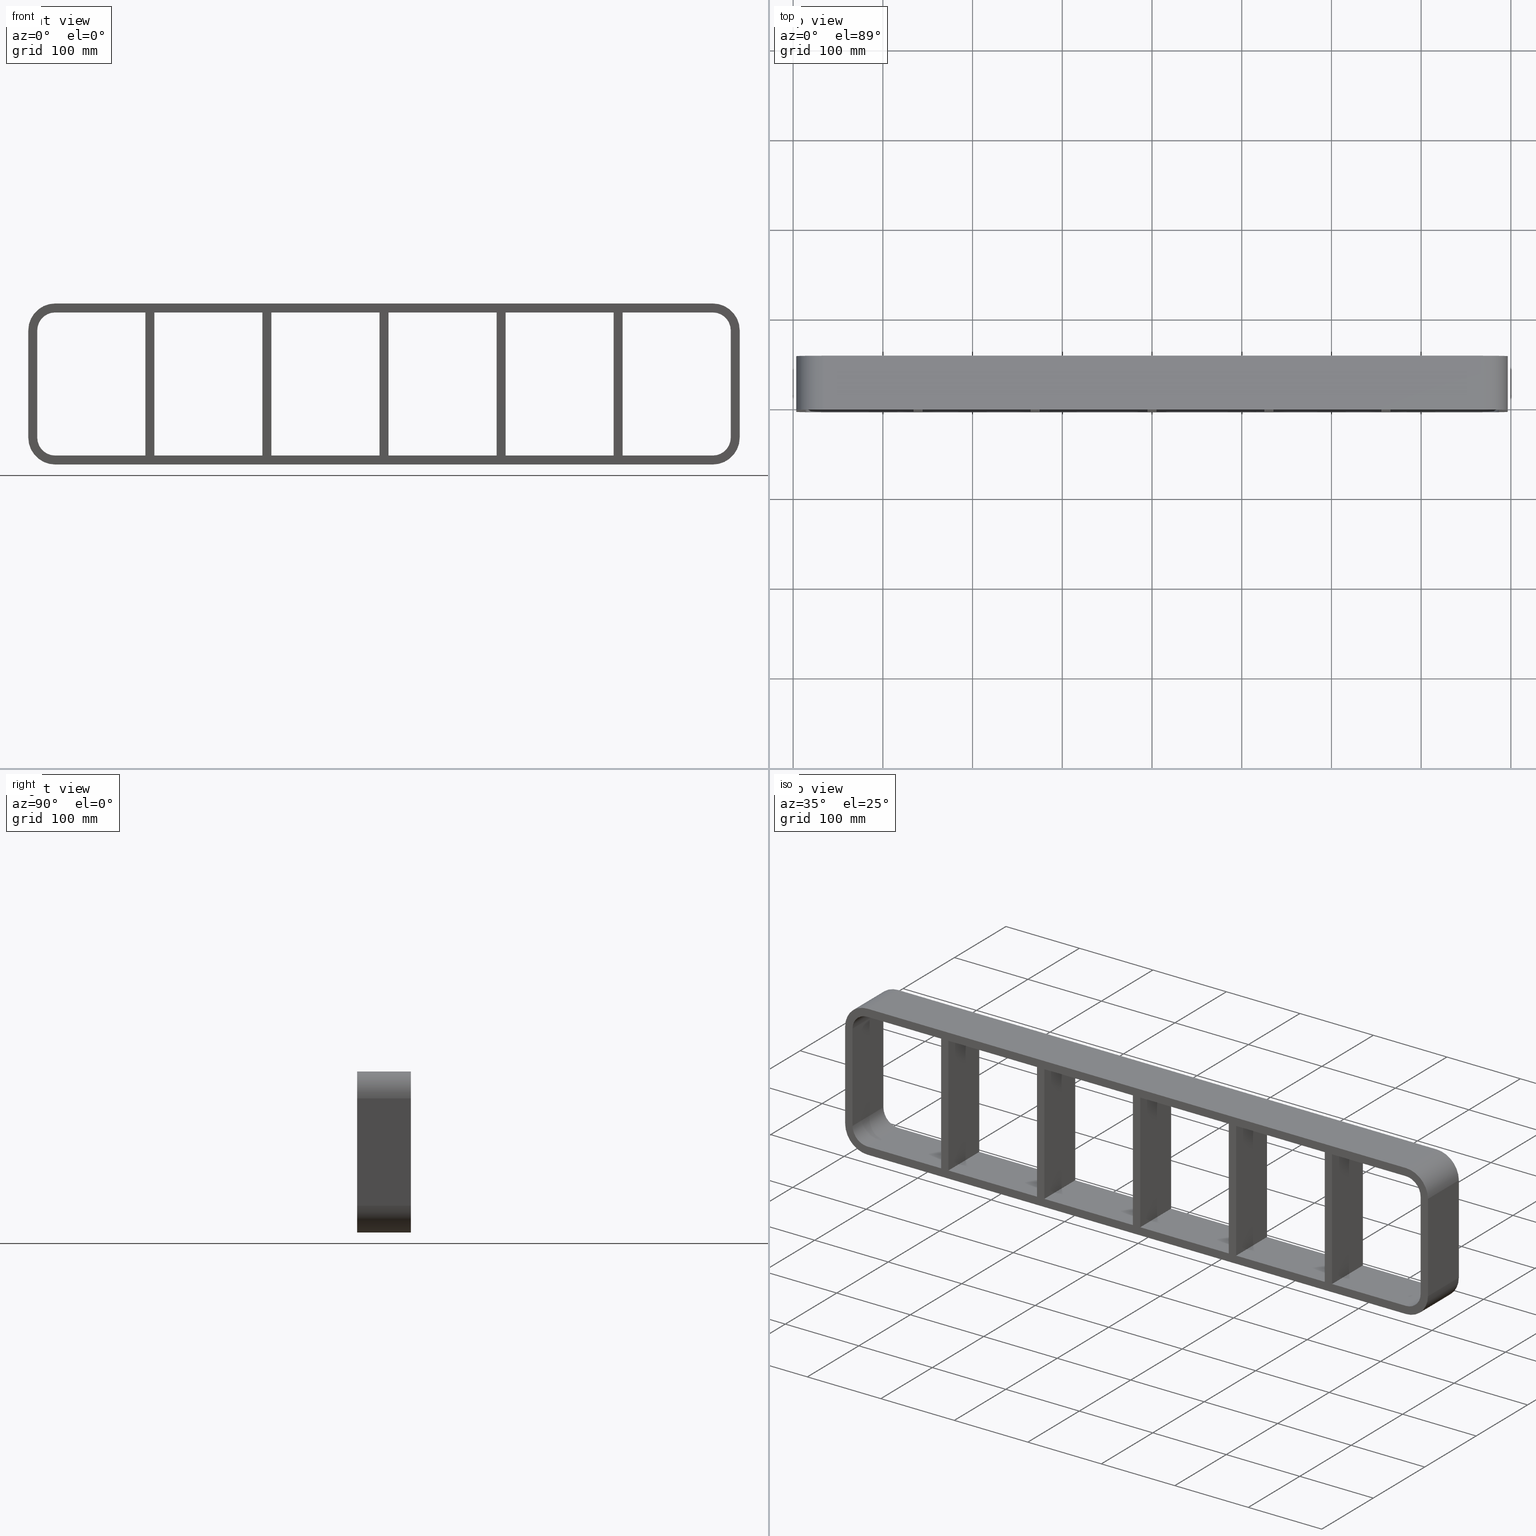
[diagram: canonical four-view strip — front | top / right | iso, engineering-drawing reading convention]
A machine part, canonical four-view strip (front | top / right | iso — engineering-drawing reading convention). The complete STEP part file that produces these views, byte-faithful:
ISO-10303-21;
HEADER;
/****************************************************************
 * Generated by software with PDElib inside                    *
 * PDElib Version v51a, created Wed 11/30/2011                  *
 * ITI Transcendata (http://www.transcendata.com/)              *
 ****************************************************************/
FILE_DESCRIPTION((''),'2;1');
FILE_NAME('N:\\Projects\\Ongoing_Projects\\12403 Transit Designer\\Product-data\\Product Data\\Transit designer Cad Generator\\CreatedFiles\\STEP\\SRCR20-4X6.stp','2014-10-31T09:52:24',(''),(''),'Autodesk Inventor 2013','Autodesk Inventor 2013','');
FILE_SCHEMA(('AUTOMOTIVE_DESIGN { 1 0 10303 214 1 1 1 1 }'));
ENDSEC;
DATA;
#5=APPLICATION_CONTEXT('automotive design');
#6=APPLICATION_PROTOCOL_DEFINITION('International Standard','automotive_design',2001,#5);
#7=PRODUCT_CONTEXT('',#5,'mechanical');
#8=PRODUCT('GH-ISO','GH-ISO',$,(#7));
#9=PRODUCT_RELATED_PRODUCT_CATEGORY('part',$,(#8));
#10=PRODUCT_DEFINITION_FORMATION('',$,#8);
#11=PRODUCT_DEFINITION_CONTEXT('part definition',#5,'design');
#12=PRODUCT_DEFINITION('',$,#10,#11);
#18=(NAMED_UNIT(*)PLANE_ANGLE_UNIT()SI_UNIT($,.RADIAN.));
#19=DIMENSIONAL_EXPONENTS(0.0,0.0,0.0,0.0,0.0,0.0,0.0);
#20=PLANE_ANGLE_MEASURE_WITH_UNIT(PLANE_ANGLE_MEASURE(0.0174532925),#18);
#24=(CONVERSION_BASED_UNIT('DEGREE',#20)NAMED_UNIT(#19)PLANE_ANGLE_UNIT());
#28=(NAMED_UNIT(*)SI_UNIT($,.STERADIAN.)SOLID_ANGLE_UNIT());
#32=(LENGTH_UNIT()NAMED_UNIT(*)SI_UNIT(.MILLI.,.METRE.));
#34=UNCERTAINTY_MEASURE_WITH_UNIT(LENGTH_MEASURE(0.01),#32,'DISTANCE_ACCURACY_VALUE','');
#36=(GEOMETRIC_REPRESENTATION_CONTEXT(3)GLOBAL_UNCERTAINTY_ASSIGNED_CONTEXT((#34))GLOBAL_UNIT_ASSIGNED_CONTEXT((#24,#28,#32))REPRESENTATION_CONTEXT('None','None'));
#37=AXIS2_PLACEMENT_3D('',#38,#39,#40);
#38=CARTESIAN_POINT('',(0.0,0.0,0.0));
#39=DIRECTION('',(0.0,0.0,1.0));
#40=DIRECTION('',(1.0,0.0,0.0));
#41=SHAPE_REPRESENTATION('',(#37),#36);
#42=PRODUCT_DEFINITION_SHAPE('','',#12);
#43=SHAPE_DEFINITION_REPRESENTATION(#42,#41);
#49=(NAMED_UNIT(*)PLANE_ANGLE_UNIT()SI_UNIT($,.RADIAN.));
#50=DIMENSIONAL_EXPONENTS(0.0,0.0,0.0,0.0,0.0,0.0,0.0);
#51=PLANE_ANGLE_MEASURE_WITH_UNIT(PLANE_ANGLE_MEASURE(0.0174532925),#49);
#55=(CONVERSION_BASED_UNIT('DEGREE',#51)NAMED_UNIT(#50)PLANE_ANGLE_UNIT());
#59=(NAMED_UNIT(*)SI_UNIT($,.STERADIAN.)SOLID_ANGLE_UNIT());
#63=(LENGTH_UNIT()NAMED_UNIT(*)SI_UNIT(.MILLI.,.METRE.));
#65=UNCERTAINTY_MEASURE_WITH_UNIT(LENGTH_MEASURE(0.000001),#63,'DISTANCE_ACCURACY_VALUE','');
#67=(GEOMETRIC_REPRESENTATION_CONTEXT(3)GLOBAL_UNCERTAINTY_ASSIGNED_CONTEXT((#65))GLOBAL_UNIT_ASSIGNED_CONTEXT((#55,#59,#63))REPRESENTATION_CONTEXT('','3D'));
#68=CARTESIAN_POINT('',(255.99999999999869,-3.0,-79.750000000000014));
#69=DIRECTION('',(-1.0,0.0,0.0));
#70=DIRECTION('',(0.0,0.0,1.0));
#71=AXIS2_PLACEMENT_3D('',#68,#69,#70);
#72=PLANE('',#71);
#73=CARTESIAN_POINT('',(255.99999999999869,-3.0,-79.750000000000014));
#74=VERTEX_POINT('',#73);
#75=CARTESIAN_POINT('',(255.99999999999866,-3.0,79.750000000000014));
#76=VERTEX_POINT('',#75);
#77=CARTESIAN_POINT('',(255.99999999999869,-3.0,-79.750000000000014));
#78=DIRECTION('',(0.0,0.0,1.0));
#79=VECTOR('',#78,159.50000000000003);
#80=LINE('',#77,#79);
#81=EDGE_CURVE('',#74,#76,#80,.T.);
#82=ORIENTED_EDGE('',*,*,#81,.T.);
#83=CARTESIAN_POINT('',(255.99999999999866,57.0,79.750000000000014));
#84=VERTEX_POINT('',#83);
#85=CARTESIAN_POINT('',(255.99999999999866,57.000000000000007,79.750000000000014));
#86=DIRECTION('',(0.0,-1.0,0.0));
#87=VECTOR('',#86,60.000000000000007);
#88=LINE('',#85,#87);
#89=EDGE_CURVE('',#84,#76,#88,.T.);
#90=ORIENTED_EDGE('',*,*,#89,.F.);
#91=CARTESIAN_POINT('',(255.99999999999869,57.0,-79.750000000000014));
#92=VERTEX_POINT('',#91);
#93=CARTESIAN_POINT('',(255.99999999999869,57.0,-79.750000000000014));
#94=DIRECTION('',(0.0,0.0,1.0));
#95=VECTOR('',#94,159.50000000000003);
#96=LINE('',#93,#95);
#97=EDGE_CURVE('',#92,#84,#96,.T.);
#98=ORIENTED_EDGE('',*,*,#97,.F.);
#99=CARTESIAN_POINT('',(255.99999999999866,-3.0,-79.750000000000014));
#100=DIRECTION('',(0.0,1.0,0.0));
#101=VECTOR('',#100,60.000000000000007);
#102=LINE('',#99,#101);
#103=EDGE_CURVE('',#74,#92,#102,.T.);
#104=ORIENTED_EDGE('',*,*,#103,.F.);
#105=EDGE_LOOP('',(#82,#90,#98,#104));
#106=FACE_OUTER_BOUND('',#105,.T.);
#107=ADVANCED_FACE('',(#106),#72,.T.);
#108=CARTESIAN_POINT('',(265.99999999999642,-3.0,79.750000000000014));
#109=DIRECTION('',(1.0,0.0,0.0));
#110=DIRECTION('',(0.0,0.0,-1.0));
#111=AXIS2_PLACEMENT_3D('',#108,#109,#110);
#112=PLANE('',#111);
#113=CARTESIAN_POINT('',(265.99999999999642,-3.0,79.750000000000014));
#114=VERTEX_POINT('',#113);
#115=CARTESIAN_POINT('',(265.99999999999642,-3.0,-79.749999999984283));
#116=VERTEX_POINT('',#115);
#117=CARTESIAN_POINT('',(265.99999999999642,-3.0,79.750000000000014));
#118=DIRECTION('',(0.0,0.0,-1.0));
#119=VECTOR('',#118,159.49999999998428);
#120=LINE('',#117,#119);
#121=EDGE_CURVE('',#114,#116,#120,.T.);
#122=ORIENTED_EDGE('',*,*,#121,.T.);
#123=CARTESIAN_POINT('',(265.99999999999642,57.0,-79.749999999984283));
#124=VERTEX_POINT('',#123);
#125=CARTESIAN_POINT('',(265.99999999999636,57.000000000000007,-79.750000000000014));
#126=DIRECTION('',(0.0,-1.0,0.0));
#127=VECTOR('',#126,60.000000000000007);
#128=LINE('',#125,#127);
#129=EDGE_CURVE('',#124,#116,#128,.T.);
#130=ORIENTED_EDGE('',*,*,#129,.F.);
#131=CARTESIAN_POINT('',(265.99999999999642,57.0,79.750000000000014));
#132=VERTEX_POINT('',#131);
#133=CARTESIAN_POINT('',(265.99999999999642,57.0,79.750000000000014));
#134=DIRECTION('',(0.0,0.0,-1.0));
#135=VECTOR('',#134,159.49999999998428);
#136=LINE('',#133,#135);
#137=EDGE_CURVE('',#132,#124,#136,.T.);
#138=ORIENTED_EDGE('',*,*,#137,.F.);
#139=CARTESIAN_POINT('',(265.99999999999636,-3.0,79.750000000000014));
#140=DIRECTION('',(0.0,1.0,0.0));
#141=VECTOR('',#140,60.000000000000007);
#142=LINE('',#139,#141);
#143=EDGE_CURVE('',#114,#132,#142,.T.);
#144=ORIENTED_EDGE('',*,*,#143,.F.);
#145=EDGE_LOOP('',(#122,#130,#138,#144));
#146=FACE_OUTER_BOUND('',#145,.T.);
#147=ADVANCED_FACE('',(#146),#112,.T.);
#148=CARTESIAN_POINT('',(125.49999999999869,-3.0,-79.750000000000014));
#149=DIRECTION('',(-1.0,0.0,0.0));
#150=DIRECTION('',(0.0,0.0,1.0));
#151=AXIS2_PLACEMENT_3D('',#148,#149,#150);
#152=PLANE('',#151);
#153=CARTESIAN_POINT('',(125.49999999999869,-3.0,-79.750000000000014));
#154=VERTEX_POINT('',#153);
#155=CARTESIAN_POINT('',(125.49999999999866,-3.0,79.750000000000014));
#156=VERTEX_POINT('',#155);
#157=CARTESIAN_POINT('',(125.49999999999869,-3.0,-79.750000000000014));
#158=DIRECTION('',(0.0,0.0,1.0));
#159=VECTOR('',#158,159.50000000000003);
#160=LINE('',#157,#159);
#161=EDGE_CURVE('',#154,#156,#160,.T.);
#162=ORIENTED_EDGE('',*,*,#161,.T.);
#163=CARTESIAN_POINT('',(125.49999999999866,57.0,79.750000000000014));
#164=VERTEX_POINT('',#163);
#165=CARTESIAN_POINT('',(125.49999999999868,57.000000000000007,79.750000000000014));
#166=DIRECTION('',(0.0,-1.0,0.0));
#167=VECTOR('',#166,60.000000000000007);
#168=LINE('',#165,#167);
#169=EDGE_CURVE('',#164,#156,#168,.T.);
#170=ORIENTED_EDGE('',*,*,#169,.F.);
#171=CARTESIAN_POINT('',(125.49999999999869,57.0,-79.750000000000014));
#172=VERTEX_POINT('',#171);
#173=CARTESIAN_POINT('',(125.49999999999869,57.0,-79.750000000000014));
#174=DIRECTION('',(0.0,0.0,1.0));
#175=VECTOR('',#174,159.50000000000003);
#176=LINE('',#173,#175);
#177=EDGE_CURVE('',#172,#164,#176,.T.);
#178=ORIENTED_EDGE('',*,*,#177,.F.);
#179=CARTESIAN_POINT('',(125.49999999999869,-3.0,-79.750000000000014));
#180=DIRECTION('',(0.0,1.0,0.0));
#181=VECTOR('',#180,60.000000000000007);
#182=LINE('',#179,#181);
#183=EDGE_CURVE('',#154,#172,#182,.T.);
#184=ORIENTED_EDGE('',*,*,#183,.F.);
#185=EDGE_LOOP('',(#162,#170,#178,#184));
#186=FACE_OUTER_BOUND('',#185,.T.);
#187=ADVANCED_FACE('',(#186),#152,.T.);
#188=CARTESIAN_POINT('',(135.49999999999642,-3.0,79.750000000000014));
#189=DIRECTION('',(1.0,0.0,0.0));
#190=DIRECTION('',(0.0,0.0,-1.0));
#191=AXIS2_PLACEMENT_3D('',#188,#189,#190);
#192=PLANE('',#191);
#193=CARTESIAN_POINT('',(135.49999999999642,-3.0,79.750000000000014));
#194=VERTEX_POINT('',#193);
#195=CARTESIAN_POINT('',(135.49999999999642,-3.0,-79.749999999984283));
#196=VERTEX_POINT('',#195);
#197=CARTESIAN_POINT('',(135.49999999999642,-3.0,79.750000000000014));
#198=DIRECTION('',(0.0,0.0,-1.0));
#199=VECTOR('',#198,159.49999999998428);
#200=LINE('',#197,#199);
#201=EDGE_CURVE('',#194,#196,#200,.T.);
#202=ORIENTED_EDGE('',*,*,#201,.T.);
#203=CARTESIAN_POINT('',(135.49999999999642,57.0,-79.749999999984283));
#204=VERTEX_POINT('',#203);
#205=CARTESIAN_POINT('',(135.49999999999642,57.000000000000007,-79.750000000000014));
#206=DIRECTION('',(0.0,-1.0,0.0));
#207=VECTOR('',#206,60.000000000000007);
#208=LINE('',#205,#207);
#209=EDGE_CURVE('',#204,#196,#208,.T.);
#210=ORIENTED_EDGE('',*,*,#209,.F.);
#211=CARTESIAN_POINT('',(135.49999999999642,57.0,79.750000000000014));
#212=VERTEX_POINT('',#211);
#213=CARTESIAN_POINT('',(135.49999999999642,57.0,79.750000000000014));
#214=DIRECTION('',(0.0,0.0,-1.0));
#215=VECTOR('',#214,159.49999999998428);
#216=LINE('',#213,#215);
#217=EDGE_CURVE('',#212,#204,#216,.T.);
#218=ORIENTED_EDGE('',*,*,#217,.F.);
#219=CARTESIAN_POINT('',(135.49999999999642,-3.0,79.750000000000014));
#220=DIRECTION('',(0.0,1.0,0.0));
#221=VECTOR('',#220,60.000000000000007);
#222=LINE('',#219,#221);
#223=EDGE_CURVE('',#194,#212,#222,.T.);
#224=ORIENTED_EDGE('',*,*,#223,.F.);
#225=EDGE_LOOP('',(#202,#210,#218,#224));
#226=FACE_OUTER_BOUND('',#225,.T.);
#227=ADVANCED_FACE('',(#226),#192,.T.);
#228=CARTESIAN_POINT('',(-5.00000000000135,-3.0,-79.750000000000014));
#229=DIRECTION('',(-1.0,0.0,0.0));
#230=DIRECTION('',(0.0,0.0,1.0));
#231=AXIS2_PLACEMENT_3D('',#228,#229,#230);
#232=PLANE('',#231);
#233=CARTESIAN_POINT('',(-5.00000000000135,-3.0,-79.750000000000014));
#234=VERTEX_POINT('',#233);
#235=CARTESIAN_POINT('',(-5.000000000001386,-3.0,79.750000000000014));
#236=VERTEX_POINT('',#235);
#237=CARTESIAN_POINT('',(-5.00000000000135,-3.0,-79.750000000000014));
#238=DIRECTION('',(0.0,0.0,1.0));
#239=VECTOR('',#238,159.50000000000003);
#240=LINE('',#237,#239);
#241=EDGE_CURVE('',#234,#236,#240,.T.);
#242=ORIENTED_EDGE('',*,*,#241,.T.);
#243=CARTESIAN_POINT('',(-5.000000000001386,57.0,79.750000000000014));
#244=VERTEX_POINT('',#243);
#245=CARTESIAN_POINT('',(-5.000000000001403,57.000000000000007,79.750000000000014));
#246=DIRECTION('',(0.0,-1.0,0.0));
#247=VECTOR('',#246,60.000000000000007);
#248=LINE('',#245,#247);
#249=EDGE_CURVE('',#244,#236,#248,.T.);
#250=ORIENTED_EDGE('',*,*,#249,.F.);
#251=CARTESIAN_POINT('',(-5.00000000000135,57.0,-79.750000000000014));
#252=VERTEX_POINT('',#251);
#253=CARTESIAN_POINT('',(-5.00000000000135,57.0,-79.750000000000014));
#254=DIRECTION('',(0.0,0.0,1.0));
#255=VECTOR('',#254,159.50000000000003);
#256=LINE('',#253,#255);
#257=EDGE_CURVE('',#252,#244,#256,.T.);
#258=ORIENTED_EDGE('',*,*,#257,.F.);
#259=CARTESIAN_POINT('',(-5.00000000000135,-3.0,-79.750000000000014));
#260=DIRECTION('',(0.0,1.0,0.0));
#261=VECTOR('',#260,60.000000000000007);
#262=LINE('',#259,#261);
#263=EDGE_CURVE('',#234,#252,#262,.T.);
#264=ORIENTED_EDGE('',*,*,#263,.F.);
#265=EDGE_LOOP('',(#242,#250,#258,#264));
#266=FACE_OUTER_BOUND('',#265,.T.);
#267=ADVANCED_FACE('',(#266),#232,.T.);
#268=CARTESIAN_POINT('',(4.999999999996376,-3.0,79.750000000000014));
#269=DIRECTION('',(1.0,0.0,0.0));
#270=DIRECTION('',(0.0,0.0,-1.0));
#271=AXIS2_PLACEMENT_3D('',#268,#269,#270);
#272=PLANE('',#271);
#273=CARTESIAN_POINT('',(4.999999999996376,-3.0,79.750000000000014));
#274=VERTEX_POINT('',#273);
#275=CARTESIAN_POINT('',(4.999999999996376,-3.0,-79.749999999984283));
#276=VERTEX_POINT('',#275);
#277=CARTESIAN_POINT('',(4.999999999996376,-3.0,79.750000000000014));
#278=DIRECTION('',(0.0,0.0,-1.0));
#279=VECTOR('',#278,159.49999999998428);
#280=LINE('',#277,#279);
#281=EDGE_CURVE('',#274,#276,#280,.T.);
#282=ORIENTED_EDGE('',*,*,#281,.T.);
#283=CARTESIAN_POINT('',(4.999999999996376,57.0,-79.749999999984283));
#284=VERTEX_POINT('',#283);
#285=CARTESIAN_POINT('',(4.999999999996376,57.000000000000007,-79.750000000000014));
#286=DIRECTION('',(0.0,-1.0,0.0));
#287=VECTOR('',#286,60.000000000000007);
#288=LINE('',#285,#287);
#289=EDGE_CURVE('',#284,#276,#288,.T.);
#290=ORIENTED_EDGE('',*,*,#289,.F.);
#291=CARTESIAN_POINT('',(4.999999999996376,57.0,79.750000000000014));
#292=VERTEX_POINT('',#291);
#293=CARTESIAN_POINT('',(4.999999999996376,57.0,79.750000000000014));
#294=DIRECTION('',(0.0,0.0,-1.0));
#295=VECTOR('',#294,159.49999999998428);
#296=LINE('',#293,#295);
#297=EDGE_CURVE('',#292,#284,#296,.T.);
#298=ORIENTED_EDGE('',*,*,#297,.F.);
#299=CARTESIAN_POINT('',(4.999999999996376,-3.0,79.750000000000014));
#300=DIRECTION('',(0.0,1.0,0.0));
#301=VECTOR('',#300,60.000000000000007);
#302=LINE('',#299,#301);
#303=EDGE_CURVE('',#274,#292,#302,.T.);
#304=ORIENTED_EDGE('',*,*,#303,.F.);
#305=EDGE_LOOP('',(#282,#290,#298,#304));
#306=FACE_OUTER_BOUND('',#305,.T.);
#307=ADVANCED_FACE('',(#306),#272,.T.);
#308=CARTESIAN_POINT('',(-135.50000000000136,-3.0,-79.750000000000014));
#309=DIRECTION('',(-1.0,0.0,0.0));
#310=DIRECTION('',(0.0,0.0,1.0));
#311=AXIS2_PLACEMENT_3D('',#308,#309,#310);
#312=PLANE('',#311);
#313=CARTESIAN_POINT('',(-135.50000000000136,-3.0,-79.750000000000014));
#314=VERTEX_POINT('',#313);
#315=CARTESIAN_POINT('',(-135.50000000000139,-3.0,79.750000000000014));
#316=VERTEX_POINT('',#315);
#317=CARTESIAN_POINT('',(-135.50000000000136,-3.0,-79.750000000000014));
#318=DIRECTION('',(0.0,0.0,1.0));
#319=VECTOR('',#318,159.50000000000003);
#320=LINE('',#317,#319);
#321=EDGE_CURVE('',#314,#316,#320,.T.);
#322=ORIENTED_EDGE('',*,*,#321,.T.);
#323=CARTESIAN_POINT('',(-135.50000000000139,57.0,79.750000000000014));
#324=VERTEX_POINT('',#323);
#325=CARTESIAN_POINT('',(-135.50000000000142,57.000000000000007,79.750000000000014));
#326=DIRECTION('',(0.0,-1.0,0.0));
#327=VECTOR('',#326,60.000000000000007);
#328=LINE('',#325,#327);
#329=EDGE_CURVE('',#324,#316,#328,.T.);
#330=ORIENTED_EDGE('',*,*,#329,.F.);
#331=CARTESIAN_POINT('',(-135.50000000000136,57.0,-79.750000000000014));
#332=VERTEX_POINT('',#331);
#333=CARTESIAN_POINT('',(-135.50000000000136,57.0,-79.750000000000014));
#334=DIRECTION('',(0.0,0.0,1.0));
#335=VECTOR('',#334,159.50000000000003);
#336=LINE('',#333,#335);
#337=EDGE_CURVE('',#332,#324,#336,.T.);
#338=ORIENTED_EDGE('',*,*,#337,.F.);
#339=CARTESIAN_POINT('',(-135.50000000000136,-3.0,-79.750000000000014));
#340=DIRECTION('',(0.0,1.0,0.0));
#341=VECTOR('',#340,60.000000000000007);
#342=LINE('',#339,#341);
#343=EDGE_CURVE('',#314,#332,#342,.T.);
#344=ORIENTED_EDGE('',*,*,#343,.F.);
#345=EDGE_LOOP('',(#322,#330,#338,#344));
#346=FACE_OUTER_BOUND('',#345,.T.);
#347=ADVANCED_FACE('',(#346),#312,.T.);
#348=CARTESIAN_POINT('',(-125.50000000000364,-3.0,79.750000000000014));
#349=DIRECTION('',(1.0,0.0,0.0));
#350=DIRECTION('',(0.0,0.0,-1.0));
#351=AXIS2_PLACEMENT_3D('',#348,#349,#350);
#352=PLANE('',#351);
#353=CARTESIAN_POINT('',(-125.50000000000364,-3.0,79.750000000000014));
#354=VERTEX_POINT('',#353);
#355=CARTESIAN_POINT('',(-125.50000000000364,-3.0,-79.749999999984283));
#356=VERTEX_POINT('',#355);
#357=CARTESIAN_POINT('',(-125.50000000000364,-3.0,79.750000000000014));
#358=DIRECTION('',(0.0,0.0,-1.0));
#359=VECTOR('',#358,159.49999999998428);
#360=LINE('',#357,#359);
#361=EDGE_CURVE('',#354,#356,#360,.T.);
#362=ORIENTED_EDGE('',*,*,#361,.T.);
#363=CARTESIAN_POINT('',(-125.50000000000364,57.0,-79.749999999984283));
#364=VERTEX_POINT('',#363);
#365=CARTESIAN_POINT('',(-125.50000000000365,57.000000000000007,-79.750000000000014));
#366=DIRECTION('',(0.0,-1.0,0.0));
#367=VECTOR('',#366,60.000000000000007);
#368=LINE('',#365,#367);
#369=EDGE_CURVE('',#364,#356,#368,.T.);
#370=ORIENTED_EDGE('',*,*,#369,.F.);
#371=CARTESIAN_POINT('',(-125.50000000000364,57.0,79.750000000000014));
#372=VERTEX_POINT('',#371);
#373=CARTESIAN_POINT('',(-125.50000000000364,57.0,79.750000000000014));
#374=DIRECTION('',(0.0,0.0,-1.0));
#375=VECTOR('',#374,159.49999999998428);
#376=LINE('',#373,#375);
#377=EDGE_CURVE('',#372,#364,#376,.T.);
#378=ORIENTED_EDGE('',*,*,#377,.F.);
#379=CARTESIAN_POINT('',(-125.50000000000365,-3.0,79.750000000000014));
#380=DIRECTION('',(0.0,1.0,0.0));
#381=VECTOR('',#380,60.000000000000007);
#382=LINE('',#379,#381);
#383=EDGE_CURVE('',#354,#372,#382,.T.);
#384=ORIENTED_EDGE('',*,*,#383,.F.);
#385=EDGE_LOOP('',(#362,#370,#378,#384));
#386=FACE_OUTER_BOUND('',#385,.T.);
#387=ADVANCED_FACE('',(#386),#352,.T.);
#388=CARTESIAN_POINT('',(386.50000000000006,0.0,-79.750000000000014));
#389=DIRECTION('',(0.0,0.0,-1.0));
#390=DIRECTION('',(-1.0,0.0,0.0));
#391=AXIS2_PLACEMENT_3D('',#388,#389,#390);
#392=PLANE('',#391);
#393=ORIENTED_EDGE('',*,*,#343,.T.);
#394=CARTESIAN_POINT('',(-256.00000000000364,57.0,-79.749999999984283));
#395=VERTEX_POINT('',#394);
#396=CARTESIAN_POINT('',(-256.00000000000364,57.0,-79.750000000000014));
#397=DIRECTION('',(1.0,0.0,0.0));
#398=VECTOR('',#397,120.50000000000225);
#399=LINE('',#396,#398);
#400=EDGE_CURVE('',#395,#332,#399,.T.);
#401=ORIENTED_EDGE('',*,*,#400,.F.);
#402=CARTESIAN_POINT('',(-256.00000000000364,-3.0,-79.749999999984283));
#403=VERTEX_POINT('',#402);
#404=CARTESIAN_POINT('',(-256.00000000000364,57.000000000000007,-79.750000000000014));
#405=DIRECTION('',(0.0,-1.0,0.0));
#406=VECTOR('',#405,60.000000000000007);
#407=LINE('',#404,#406);
#408=EDGE_CURVE('',#395,#403,#407,.T.);
#409=ORIENTED_EDGE('',*,*,#408,.T.);
#410=CARTESIAN_POINT('',(-135.50000000000139,-3.0,-79.750000000000014));
#411=DIRECTION('',(-1.0,0.0,0.0));
#412=VECTOR('',#411,120.50000000000225);
#413=LINE('',#410,#412);
#414=EDGE_CURVE('',#314,#403,#413,.T.);
#415=ORIENTED_EDGE('',*,*,#414,.F.);
#416=EDGE_LOOP('',(#393,#401,#409,#415));
#417=FACE_OUTER_BOUND('',#416,.T.);
#418=ADVANCED_FACE('',(#417),#392,.F.);
#419=CARTESIAN_POINT('',(386.50000000000006,0.0,-79.750000000000014));
#420=DIRECTION('',(0.0,0.0,-1.0));
#421=DIRECTION('',(-1.0,0.0,0.0));
#422=AXIS2_PLACEMENT_3D('',#419,#420,#421);
#423=PLANE('',#422);
#424=ORIENTED_EDGE('',*,*,#263,.T.);
#425=CARTESIAN_POINT('',(-125.50000000000361,57.0,-79.750000000000014));
#426=DIRECTION('',(1.0,0.0,0.0));
#427=VECTOR('',#426,120.50000000000227);
#428=LINE('',#425,#427);
#429=EDGE_CURVE('',#364,#252,#428,.T.);
#430=ORIENTED_EDGE('',*,*,#429,.F.);
#431=ORIENTED_EDGE('',*,*,#369,.T.);
#432=CARTESIAN_POINT('',(-5.000000000001336,-3.0,-79.750000000000014));
#433=DIRECTION('',(-1.0,0.0,0.0));
#434=VECTOR('',#433,120.50000000000227);
#435=LINE('',#432,#434);
#436=EDGE_CURVE('',#234,#356,#435,.T.);
#437=ORIENTED_EDGE('',*,*,#436,.F.);
#438=EDGE_LOOP('',(#424,#430,#431,#437));
#439=FACE_OUTER_BOUND('',#438,.T.);
#440=ADVANCED_FACE('',(#439),#423,.F.);
#441=CARTESIAN_POINT('',(386.50000000000006,0.0,-79.750000000000014));
#442=DIRECTION('',(0.0,0.0,-1.0));
#443=DIRECTION('',(-1.0,0.0,0.0));
#444=AXIS2_PLACEMENT_3D('',#441,#442,#443);
#445=PLANE('',#444);
#446=ORIENTED_EDGE('',*,*,#183,.T.);
#447=CARTESIAN_POINT('',(4.99999999999639,57.0,-79.750000000000014));
#448=DIRECTION('',(1.0,0.0,0.0));
#449=VECTOR('',#448,120.5000000000023);
#450=LINE('',#447,#449);
#451=EDGE_CURVE('',#284,#172,#450,.T.);
#452=ORIENTED_EDGE('',*,*,#451,.F.);
#453=ORIENTED_EDGE('',*,*,#289,.T.);
#454=CARTESIAN_POINT('',(125.49999999999869,-3.0,-79.750000000000014));
#455=DIRECTION('',(-1.0,0.0,0.0));
#456=VECTOR('',#455,120.5000000000023);
#457=LINE('',#454,#456);
#458=EDGE_CURVE('',#154,#276,#457,.T.);
#459=ORIENTED_EDGE('',*,*,#458,.F.);
#460=EDGE_LOOP('',(#446,#452,#453,#459));
#461=FACE_OUTER_BOUND('',#460,.T.);
#462=ADVANCED_FACE('',(#461),#445,.F.);
#463=CARTESIAN_POINT('',(386.50000000000006,0.0,-79.750000000000014));
#464=DIRECTION('',(0.0,0.0,-1.0));
#465=DIRECTION('',(-1.0,0.0,0.0));
#466=AXIS2_PLACEMENT_3D('',#463,#464,#465);
#467=PLANE('',#466);
#468=ORIENTED_EDGE('',*,*,#103,.T.);
#469=CARTESIAN_POINT('',(135.49999999999642,57.0,-79.750000000000014));
#470=DIRECTION('',(1.0,0.0,0.0));
#471=VECTOR('',#470,120.50000000000227);
#472=LINE('',#469,#471);
#473=EDGE_CURVE('',#204,#92,#472,.T.);
#474=ORIENTED_EDGE('',*,*,#473,.F.);
#475=ORIENTED_EDGE('',*,*,#209,.T.);
#476=CARTESIAN_POINT('',(255.99999999999869,-3.0,-79.750000000000014));
#477=DIRECTION('',(-1.0,0.0,0.0));
#478=VECTOR('',#477,120.50000000000227);
#479=LINE('',#476,#478);
#480=EDGE_CURVE('',#74,#196,#479,.T.);
#481=ORIENTED_EDGE('',*,*,#480,.F.);
#482=EDGE_LOOP('',(#468,#474,#475,#481));
#483=FACE_OUTER_BOUND('',#482,.T.);
#484=ADVANCED_FACE('',(#483),#467,.F.);
#485=CARTESIAN_POINT('',(386.50000000000006,0.0,-79.750000000000014));
#486=DIRECTION('',(0.0,0.0,-1.0));
#487=DIRECTION('',(-1.0,0.0,0.0));
#488=AXIS2_PLACEMENT_3D('',#485,#486,#487);
#489=PLANE('',#488);
#490=ORIENTED_EDGE('',*,*,#129,.T.);
#491=CARTESIAN_POINT('',(366.50000000000006,-3.0,-79.750000000000014));
#492=VERTEX_POINT('',#491);
#493=CARTESIAN_POINT('',(366.50000000000006,-3.0,-79.750000000000014));
#494=DIRECTION('',(-1.0,0.0,0.0));
#495=VECTOR('',#494,100.50000000000364);
#496=LINE('',#493,#495);
#497=EDGE_CURVE('',#492,#116,#496,.T.);
#498=ORIENTED_EDGE('',*,*,#497,.F.);
#499=CARTESIAN_POINT('',(366.50000000000006,57.0,-79.750000000000014));
#500=VERTEX_POINT('',#499);
#501=CARTESIAN_POINT('',(366.50000000000006,57.0,-79.750000000000014));
#502=DIRECTION('',(0.0,-1.0,0.0));
#503=VECTOR('',#502,60.0);
#504=LINE('',#501,#503);
#505=EDGE_CURVE('',#500,#492,#504,.T.);
#506=ORIENTED_EDGE('',*,*,#505,.F.);
#507=CARTESIAN_POINT('',(265.99999999999642,57.0,-79.750000000000014));
#508=DIRECTION('',(1.0,0.0,0.0));
#509=VECTOR('',#508,100.50000000000364);
#510=LINE('',#507,#509);
#511=EDGE_CURVE('',#124,#500,#510,.T.);
#512=ORIENTED_EDGE('',*,*,#511,.F.);
#513=EDGE_LOOP('',(#490,#498,#506,#512));
#514=FACE_OUTER_BOUND('',#513,.T.);
#515=ADVANCED_FACE('',(#514),#489,.F.);
#516=CARTESIAN_POINT('',(-386.50000000000006,0.0,79.750000000000014));
#517=DIRECTION('',(0.0,0.0,1.0));
#518=DIRECTION('',(1.0,0.0,0.0));
#519=AXIS2_PLACEMENT_3D('',#516,#517,#518);
#520=PLANE('',#519);
#521=ORIENTED_EDGE('',*,*,#329,.T.);
#522=CARTESIAN_POINT('',(-256.00000000000364,-3.0,79.750000000000014));
#523=VERTEX_POINT('',#522);
#524=CARTESIAN_POINT('',(-256.00000000000364,-3.0,79.750000000000014));
#525=DIRECTION('',(1.0,0.0,0.0));
#526=VECTOR('',#525,120.50000000000225);
#527=LINE('',#524,#526);
#528=EDGE_CURVE('',#523,#316,#527,.T.);
#529=ORIENTED_EDGE('',*,*,#528,.F.);
#530=CARTESIAN_POINT('',(-256.00000000000364,57.0,79.750000000000014));
#531=VERTEX_POINT('',#530);
#532=CARTESIAN_POINT('',(-256.00000000000364,-3.0,79.750000000000014));
#533=DIRECTION('',(0.0,1.0,0.0));
#534=VECTOR('',#533,60.000000000000007);
#535=LINE('',#532,#534);
#536=EDGE_CURVE('',#523,#531,#535,.T.);
#537=ORIENTED_EDGE('',*,*,#536,.T.);
#538=CARTESIAN_POINT('',(-135.50000000000139,57.0,79.750000000000014));
#539=DIRECTION('',(-1.0,0.0,0.0));
#540=VECTOR('',#539,120.50000000000225);
#541=LINE('',#538,#540);
#542=EDGE_CURVE('',#324,#531,#541,.T.);
#543=ORIENTED_EDGE('',*,*,#542,.F.);
#544=EDGE_LOOP('',(#521,#529,#537,#543));
#545=FACE_OUTER_BOUND('',#544,.T.);
#546=ADVANCED_FACE('',(#545),#520,.F.);
#547=CARTESIAN_POINT('',(-386.50000000000006,0.0,79.750000000000014));
#548=DIRECTION('',(0.0,0.0,1.0));
#549=DIRECTION('',(1.0,0.0,0.0));
#550=AXIS2_PLACEMENT_3D('',#547,#548,#549);
#551=PLANE('',#550);
#552=ORIENTED_EDGE('',*,*,#249,.T.);
#553=CARTESIAN_POINT('',(-125.50000000000364,-3.0,79.750000000000014));
#554=DIRECTION('',(1.0,0.0,0.0));
#555=VECTOR('',#554,120.50000000000225);
#556=LINE('',#553,#555);
#557=EDGE_CURVE('',#354,#236,#556,.T.);
#558=ORIENTED_EDGE('',*,*,#557,.F.);
#559=ORIENTED_EDGE('',*,*,#383,.T.);
#560=CARTESIAN_POINT('',(-5.000000000001393,57.0,79.750000000000014));
#561=DIRECTION('',(-1.0,0.0,0.0));
#562=VECTOR('',#561,120.50000000000225);
#563=LINE('',#560,#562);
#564=EDGE_CURVE('',#244,#372,#563,.T.);
#565=ORIENTED_EDGE('',*,*,#564,.F.);
#566=EDGE_LOOP('',(#552,#558,#559,#565));
#567=FACE_OUTER_BOUND('',#566,.T.);
#568=ADVANCED_FACE('',(#567),#551,.F.);
#569=CARTESIAN_POINT('',(-386.50000000000006,0.0,79.750000000000014));
#570=DIRECTION('',(0.0,0.0,1.0));
#571=DIRECTION('',(1.0,0.0,0.0));
#572=AXIS2_PLACEMENT_3D('',#569,#570,#571);
#573=PLANE('',#572);
#574=ORIENTED_EDGE('',*,*,#169,.T.);
#575=CARTESIAN_POINT('',(4.99999999999639,-3.0,79.750000000000014));
#576=DIRECTION('',(1.0,0.0,0.0));
#577=VECTOR('',#576,120.50000000000227);
#578=LINE('',#575,#577);
#579=EDGE_CURVE('',#274,#156,#578,.T.);
#580=ORIENTED_EDGE('',*,*,#579,.F.);
#581=ORIENTED_EDGE('',*,*,#303,.T.);
#582=CARTESIAN_POINT('',(125.49999999999866,57.0,79.750000000000014));
#583=DIRECTION('',(-1.0,0.0,0.0));
#584=VECTOR('',#583,120.50000000000227);
#585=LINE('',#582,#584);
#586=EDGE_CURVE('',#164,#292,#585,.T.);
#587=ORIENTED_EDGE('',*,*,#586,.F.);
#588=EDGE_LOOP('',(#574,#580,#581,#587));
#589=FACE_OUTER_BOUND('',#588,.T.);
#590=ADVANCED_FACE('',(#589),#573,.F.);
#591=CARTESIAN_POINT('',(-386.50000000000006,0.0,79.750000000000014));
#592=DIRECTION('',(0.0,0.0,1.0));
#593=DIRECTION('',(1.0,0.0,0.0));
#594=AXIS2_PLACEMENT_3D('',#591,#592,#593);
#595=PLANE('',#594);
#596=ORIENTED_EDGE('',*,*,#143,.T.);
#597=CARTESIAN_POINT('',(366.50000000000006,57.0,79.750000000000014));
#598=VERTEX_POINT('',#597);
#599=CARTESIAN_POINT('',(366.50000000000011,57.0,79.750000000000014));
#600=DIRECTION('',(-1.0,0.0,0.0));
#601=VECTOR('',#600,100.50000000000375);
#602=LINE('',#599,#601);
#603=EDGE_CURVE('',#598,#132,#602,.T.);
#604=ORIENTED_EDGE('',*,*,#603,.F.);
#605=CARTESIAN_POINT('',(366.50000000000006,-3.0,79.750000000000014));
#606=VERTEX_POINT('',#605);
#607=CARTESIAN_POINT('',(366.50000000000006,-3.0,79.750000000000014));
#608=DIRECTION('',(0.0,1.0,0.0));
#609=VECTOR('',#608,60.0);
#610=LINE('',#607,#609);
#611=EDGE_CURVE('',#606,#598,#610,.T.);
#612=ORIENTED_EDGE('',*,*,#611,.F.);
#613=CARTESIAN_POINT('',(265.99999999999636,-3.0,79.750000000000014));
#614=DIRECTION('',(1.0,0.0,0.0));
#615=VECTOR('',#614,100.50000000000375);
#616=LINE('',#613,#615);
#617=EDGE_CURVE('',#114,#606,#616,.T.);
#618=ORIENTED_EDGE('',*,*,#617,.F.);
#619=EDGE_LOOP('',(#596,#604,#612,#618));
#620=FACE_OUTER_BOUND('',#619,.T.);
#621=ADVANCED_FACE('',(#620),#595,.F.);
#622=CARTESIAN_POINT('',(-386.50000000000006,0.0,79.750000000000014));
#623=DIRECTION('',(0.0,0.0,1.0));
#624=DIRECTION('',(1.0,0.0,0.0));
#625=AXIS2_PLACEMENT_3D('',#622,#623,#624);
#626=PLANE('',#625);
#627=ORIENTED_EDGE('',*,*,#89,.T.);
#628=CARTESIAN_POINT('',(135.49999999999645,-3.0,79.750000000000014));
#629=DIRECTION('',(1.0,0.0,0.0));
#630=VECTOR('',#629,120.50000000000222);
#631=LINE('',#628,#630);
#632=EDGE_CURVE('',#194,#76,#631,.T.);
#633=ORIENTED_EDGE('',*,*,#632,.F.);
#634=ORIENTED_EDGE('',*,*,#223,.T.);
#635=CARTESIAN_POINT('',(255.99999999999866,57.0,79.750000000000014));
#636=DIRECTION('',(-1.0,0.0,0.0));
#637=VECTOR('',#636,120.50000000000222);
#638=LINE('',#635,#637);
#639=EDGE_CURVE('',#84,#212,#638,.T.);
#640=ORIENTED_EDGE('',*,*,#639,.F.);
#641=EDGE_LOOP('',(#627,#633,#634,#640));
#642=FACE_OUTER_BOUND('',#641,.T.);
#643=ADVANCED_FACE('',(#642),#626,.F.);
#644=CARTESIAN_POINT('',(-266.00000000000136,-3.0,-79.750000000000014));
#645=DIRECTION('',(-1.0,0.0,0.0));
#646=DIRECTION('',(0.0,0.0,1.0));
#647=AXIS2_PLACEMENT_3D('',#644,#645,#646);
#648=PLANE('',#647);
#649=CARTESIAN_POINT('',(-266.00000000000136,-3.0,-79.750000000000014));
#650=VERTEX_POINT('',#649);
#651=CARTESIAN_POINT('',(-266.00000000000142,-3.0,79.750000000000014));
#652=VERTEX_POINT('',#651);
#653=CARTESIAN_POINT('',(-266.00000000000136,-3.0,-79.750000000000014));
#654=DIRECTION('',(0.0,0.0,1.0));
#655=VECTOR('',#654,159.50000000000003);
#656=LINE('',#653,#655);
#657=EDGE_CURVE('',#650,#652,#656,.T.);
#658=ORIENTED_EDGE('',*,*,#657,.T.);
#659=CARTESIAN_POINT('',(-266.00000000000142,57.0,79.750000000000014));
#660=VERTEX_POINT('',#659);
#661=CARTESIAN_POINT('',(-266.00000000000136,57.000000000000007,79.750000000000014));
#662=DIRECTION('',(0.0,-1.0,0.0));
#663=VECTOR('',#662,60.000000000000007);
#664=LINE('',#661,#663);
#665=EDGE_CURVE('',#660,#652,#664,.T.);
#666=ORIENTED_EDGE('',*,*,#665,.F.);
#667=CARTESIAN_POINT('',(-266.00000000000136,57.0,-79.750000000000014));
#668=VERTEX_POINT('',#667);
#669=CARTESIAN_POINT('',(-266.00000000000136,57.0,-79.750000000000014));
#670=DIRECTION('',(0.0,0.0,1.0));
#671=VECTOR('',#670,159.50000000000003);
#672=LINE('',#669,#671);
#673=EDGE_CURVE('',#668,#660,#672,.T.);
#674=ORIENTED_EDGE('',*,*,#673,.F.);
#675=CARTESIAN_POINT('',(-266.00000000000136,-3.0,-79.750000000000014));
#676=DIRECTION('',(0.0,1.0,0.0));
#677=VECTOR('',#676,60.000000000000007);
#678=LINE('',#675,#677);
#679=EDGE_CURVE('',#650,#668,#678,.T.);
#680=ORIENTED_EDGE('',*,*,#679,.F.);
#681=EDGE_LOOP('',(#658,#666,#674,#680));
#682=FACE_OUTER_BOUND('',#681,.T.);
#683=ADVANCED_FACE('',(#682),#648,.T.);
#684=CARTESIAN_POINT('',(-256.00000000000364,-3.0,79.750000000000014));
#685=DIRECTION('',(1.0,0.0,0.0));
#686=DIRECTION('',(0.0,0.0,-1.0));
#687=AXIS2_PLACEMENT_3D('',#684,#685,#686);
#688=PLANE('',#687);
#689=CARTESIAN_POINT('',(-256.00000000000364,-3.0,79.750000000000014));
#690=DIRECTION('',(0.0,0.0,-1.0));
#691=VECTOR('',#690,159.49999999998428);
#692=LINE('',#689,#691);
#693=EDGE_CURVE('',#523,#403,#692,.T.);
#694=ORIENTED_EDGE('',*,*,#693,.T.);
#695=ORIENTED_EDGE('',*,*,#408,.F.);
#696=CARTESIAN_POINT('',(-256.00000000000364,57.0,79.750000000000014));
#697=DIRECTION('',(0.0,0.0,-1.0));
#698=VECTOR('',#697,159.49999999998428);
#699=LINE('',#696,#698);
#700=EDGE_CURVE('',#531,#395,#699,.T.);
#701=ORIENTED_EDGE('',*,*,#700,.F.);
#702=ORIENTED_EDGE('',*,*,#536,.F.);
#703=EDGE_LOOP('',(#694,#695,#701,#702));
#704=FACE_OUTER_BOUND('',#703,.T.);
#705=ADVANCED_FACE('',(#704),#688,.T.);
#706=CARTESIAN_POINT('',(386.50000000000006,0.0,-79.750000000000014));
#707=DIRECTION('',(0.0,0.0,-1.0));
#708=DIRECTION('',(-1.0,0.0,0.0));
#709=AXIS2_PLACEMENT_3D('',#706,#707,#708);
#710=PLANE('',#709);
#711=ORIENTED_EDGE('',*,*,#679,.T.);
#712=CARTESIAN_POINT('',(-366.50000000000006,57.0,-79.750000000000014));
#713=VERTEX_POINT('',#712);
#714=CARTESIAN_POINT('',(-366.50000000000011,57.0,-79.750000000000014));
#715=DIRECTION('',(1.0,0.0,0.0));
#716=VECTOR('',#715,100.49999999999875);
#717=LINE('',#714,#716);
#718=EDGE_CURVE('',#713,#668,#717,.T.);
#719=ORIENTED_EDGE('',*,*,#718,.F.);
#720=CARTESIAN_POINT('',(-366.50000000000006,-3.0,-79.750000000000014));
#721=VERTEX_POINT('',#720);
#722=CARTESIAN_POINT('',(-366.50000000000006,-3.0,-79.750000000000014));
#723=DIRECTION('',(0.0,1.0,0.0));
#724=VECTOR('',#723,60.0);
#725=LINE('',#722,#724);
#726=EDGE_CURVE('',#721,#713,#725,.T.);
#727=ORIENTED_EDGE('',*,*,#726,.F.);
#728=CARTESIAN_POINT('',(-266.00000000000136,-3.0,-79.750000000000014));
#729=DIRECTION('',(-1.0,0.0,0.0));
#730=VECTOR('',#729,100.49999999999875);
#731=LINE('',#728,#730);
#732=EDGE_CURVE('',#650,#721,#731,.T.);
#733=ORIENTED_EDGE('',*,*,#732,.F.);
#734=EDGE_LOOP('',(#711,#719,#727,#733));
#735=FACE_OUTER_BOUND('',#734,.T.);
#736=ADVANCED_FACE('',(#735),#710,.F.);
#737=CARTESIAN_POINT('',(-386.50000000000006,0.0,79.750000000000014));
#738=DIRECTION('',(0.0,0.0,1.0));
#739=DIRECTION('',(1.0,0.0,0.0));
#740=AXIS2_PLACEMENT_3D('',#737,#738,#739);
#741=PLANE('',#740);
#742=ORIENTED_EDGE('',*,*,#665,.T.);
#743=CARTESIAN_POINT('',(-366.50000000000006,-3.0,79.750000000000014));
#744=VERTEX_POINT('',#743);
#745=CARTESIAN_POINT('',(-366.50000000000006,-3.0,79.750000000000014));
#746=DIRECTION('',(1.0,0.0,0.0));
#747=VECTOR('',#746,100.49999999999869);
#748=LINE('',#745,#747);
#749=EDGE_CURVE('',#744,#652,#748,.T.);
#750=ORIENTED_EDGE('',*,*,#749,.F.);
#751=CARTESIAN_POINT('',(-366.50000000000006,57.0,79.750000000000014));
#752=VERTEX_POINT('',#751);
#753=CARTESIAN_POINT('',(-366.50000000000006,57.0,79.750000000000014));
#754=DIRECTION('',(0.0,-1.0,0.0));
#755=VECTOR('',#754,60.0);
#756=LINE('',#753,#755);
#757=EDGE_CURVE('',#752,#744,#756,.T.);
#758=ORIENTED_EDGE('',*,*,#757,.F.);
#759=CARTESIAN_POINT('',(-266.00000000000136,57.0,79.750000000000014));
#760=DIRECTION('',(-1.0,0.0,0.0));
#761=VECTOR('',#760,100.49999999999869);
#762=LINE('',#759,#761);
#763=EDGE_CURVE('',#660,#752,#762,.T.);
#764=ORIENTED_EDGE('',*,*,#763,.F.);
#765=EDGE_LOOP('',(#742,#750,#758,#764));
#766=FACE_OUTER_BOUND('',#765,.T.);
#767=ADVANCED_FACE('',(#766),#741,.F.);
#768=CARTESIAN_POINT('',(366.50000000000006,0.0,-59.750000000000014));
#769=DIRECTION('',(0.0,1.0,0.0));
#770=DIRECTION('',(0.707106781186547,0.0,-0.707106781186547));
#771=AXIS2_PLACEMENT_3D('',#768,#769,#770);
#772=CYLINDRICAL_SURFACE('',#771,30.000000000000004);
#773=CARTESIAN_POINT('',(366.50000000000006,57.0,-89.750000000000014));
#774=VERTEX_POINT('',#773);
#775=CARTESIAN_POINT('',(396.50000000000006,57.0,-59.750000000000014));
#776=VERTEX_POINT('',#775);
#777=CARTESIAN_POINT('',(366.50000000000006,57.0,-59.750000000000014));
#778=DIRECTION('',(0.0,-1.0,0.0));
#779=DIRECTION('',(0.707106781186547,0.0,-0.707106781186547));
#780=AXIS2_PLACEMENT_3D('',#777,#778,#779);
#781=CIRCLE('',#780,30.0);
#782=EDGE_CURVE('',#774,#776,#781,.T.);
#783=ORIENTED_EDGE('',*,*,#782,.T.);
#784=CARTESIAN_POINT('',(396.50000000000006,-3.0,-59.750000000000014));
#785=VERTEX_POINT('',#784);
#786=CARTESIAN_POINT('',(396.50000000000006,57.0,-59.750000000000014));
#787=DIRECTION('',(0.0,-1.0,0.0));
#788=VECTOR('',#787,60.0);
#789=LINE('',#786,#788);
#790=EDGE_CURVE('',#776,#785,#789,.T.);
#791=ORIENTED_EDGE('',*,*,#790,.T.);
#792=CARTESIAN_POINT('',(366.50000000000006,-3.0,-89.750000000000014));
#793=VERTEX_POINT('',#792);
#794=CARTESIAN_POINT('',(366.50000000000006,-3.0,-59.750000000000014));
#795=DIRECTION('',(0.0,1.0,0.0));
#796=DIRECTION('',(0.707106781186547,0.0,-0.707106781186547));
#797=AXIS2_PLACEMENT_3D('',#794,#795,#796);
#798=CIRCLE('',#797,30.0);
#799=EDGE_CURVE('',#785,#793,#798,.T.);
#800=ORIENTED_EDGE('',*,*,#799,.T.);
#801=CARTESIAN_POINT('',(366.50000000000006,-3.0,-89.750000000000014));
#802=DIRECTION('',(0.0,1.0,0.0));
#803=VECTOR('',#802,60.0);
#804=LINE('',#801,#803);
#805=EDGE_CURVE('',#793,#774,#804,.T.);
#806=ORIENTED_EDGE('',*,*,#805,.T.);
#807=EDGE_LOOP('',(#783,#791,#800,#806));
#808=FACE_OUTER_BOUND('',#807,.T.);
#809=ADVANCED_FACE('',(#808),#772,.T.);
#810=CARTESIAN_POINT('',(0.0,-3.0,0.0));
#811=DIRECTION('',(0.0,1.0,0.0));
#812=DIRECTION('',(0.0,0.0,1.0));
#813=AXIS2_PLACEMENT_3D('',#810,#811,#812);
#814=PLANE('',#813);
#815=ORIENTED_EDGE('',*,*,#799,.F.);
#816=CARTESIAN_POINT('',(396.50000000000006,-3.0,59.750000000000014));
#817=VERTEX_POINT('',#816);
#818=CARTESIAN_POINT('',(396.50000000000006,-3.0,-59.750000000000014));
#819=DIRECTION('',(0.0,0.0,1.0));
#820=VECTOR('',#819,119.50000000000003);
#821=LINE('',#818,#820);
#822=EDGE_CURVE('',#785,#817,#821,.T.);
#823=ORIENTED_EDGE('',*,*,#822,.T.);
#824=CARTESIAN_POINT('',(366.50000000000006,-3.0,89.750000000000014));
#825=VERTEX_POINT('',#824);
#826=CARTESIAN_POINT('',(366.50000000000006,-3.0,59.750000000000014));
#827=DIRECTION('',(0.0,1.0,0.0));
#828=DIRECTION('',(0.707106781186547,0.0,0.707106781186547));
#829=AXIS2_PLACEMENT_3D('',#826,#827,#828);
#830=CIRCLE('',#829,30.0);
#831=EDGE_CURVE('',#825,#817,#830,.T.);
#832=ORIENTED_EDGE('',*,*,#831,.F.);
#833=CARTESIAN_POINT('',(-366.50000000000006,-3.0,89.750000000000014));
#834=VERTEX_POINT('',#833);
#835=CARTESIAN_POINT('',(366.50000000000006,-3.0,89.750000000000014));
#836=DIRECTION('',(-1.0,0.0,0.0));
#837=VECTOR('',#836,733.00000000000011);
#838=LINE('',#835,#837);
#839=EDGE_CURVE('',#825,#834,#838,.T.);
#840=ORIENTED_EDGE('',*,*,#839,.T.);
#841=CARTESIAN_POINT('',(-396.50000000000006,-3.0,59.750000000000014));
#842=VERTEX_POINT('',#841);
#843=CARTESIAN_POINT('',(-366.50000000000006,-3.0,59.750000000000014));
#844=DIRECTION('',(0.0,1.0,0.0));
#845=DIRECTION('',(-0.707106781186547,0.0,0.707106781186547));
#846=AXIS2_PLACEMENT_3D('',#843,#844,#845);
#847=CIRCLE('',#846,30.0);
#848=EDGE_CURVE('',#842,#834,#847,.T.);
#849=ORIENTED_EDGE('',*,*,#848,.F.);
#850=CARTESIAN_POINT('',(-396.50000000000006,-3.0,-59.750000000000014));
#851=VERTEX_POINT('',#850);
#852=CARTESIAN_POINT('',(-396.50000000000006,-3.0,59.750000000000014));
#853=DIRECTION('',(0.0,0.0,-1.0));
#854=VECTOR('',#853,119.50000000000003);
#855=LINE('',#852,#854);
#856=EDGE_CURVE('',#842,#851,#855,.T.);
#857=ORIENTED_EDGE('',*,*,#856,.T.);
#858=CARTESIAN_POINT('',(-366.50000000000006,-3.0,-89.750000000000014));
#859=VERTEX_POINT('',#858);
#860=CARTESIAN_POINT('',(-366.50000000000006,-3.0,-59.750000000000014));
#861=DIRECTION('',(0.0,1.0,0.0));
#862=DIRECTION('',(-0.707106781186547,0.0,-0.707106781186547));
#863=AXIS2_PLACEMENT_3D('',#860,#861,#862);
#864=CIRCLE('',#863,30.0);
#865=EDGE_CURVE('',#859,#851,#864,.T.);
#866=ORIENTED_EDGE('',*,*,#865,.F.);
#867=CARTESIAN_POINT('',(-366.50000000000006,-3.0,-89.750000000000014));
#868=DIRECTION('',(1.0,0.0,0.0));
#869=VECTOR('',#868,733.00000000000011);
#870=LINE('',#867,#869);
#871=EDGE_CURVE('',#859,#793,#870,.T.);
#872=ORIENTED_EDGE('',*,*,#871,.T.);
#873=EDGE_LOOP('',(#815,#823,#832,#840,#849,#857,#866,#872));
#874=FACE_OUTER_BOUND('',#873,.T.);
#875=ORIENTED_EDGE('',*,*,#480,.T.);
#876=ORIENTED_EDGE('',*,*,#201,.F.);
#877=ORIENTED_EDGE('',*,*,#632,.T.);
#878=ORIENTED_EDGE('',*,*,#81,.F.);
#879=EDGE_LOOP('',(#875,#876,#877,#878));
#880=FACE_BOUND('',#879,.T.);
#881=ORIENTED_EDGE('',*,*,#458,.T.);
#882=ORIENTED_EDGE('',*,*,#281,.F.);
#883=ORIENTED_EDGE('',*,*,#579,.T.);
#884=ORIENTED_EDGE('',*,*,#161,.F.);
#885=EDGE_LOOP('',(#881,#882,#883,#884));
#886=FACE_BOUND('',#885,.T.);
#887=ORIENTED_EDGE('',*,*,#436,.T.);
#888=ORIENTED_EDGE('',*,*,#361,.F.);
#889=ORIENTED_EDGE('',*,*,#557,.T.);
#890=ORIENTED_EDGE('',*,*,#241,.F.);
#891=EDGE_LOOP('',(#887,#888,#889,#890));
#892=FACE_BOUND('',#891,.T.);
#893=ORIENTED_EDGE('',*,*,#414,.T.);
#894=ORIENTED_EDGE('',*,*,#693,.F.);
#895=ORIENTED_EDGE('',*,*,#528,.T.);
#896=ORIENTED_EDGE('',*,*,#321,.F.);
#897=EDGE_LOOP('',(#893,#894,#895,#896));
#898=FACE_BOUND('',#897,.T.);
#899=ORIENTED_EDGE('',*,*,#732,.T.);
#900=CARTESIAN_POINT('',(-386.50000000000006,-3.0,-59.750000000000014));
#901=VERTEX_POINT('',#900);
#902=CARTESIAN_POINT('',(-366.50000000000006,-3.0,-59.750000000000014));
#903=DIRECTION('',(0.0,-1.0,0.0));
#904=DIRECTION('',(-0.707106781186547,0.0,-0.707106781186547));
#905=AXIS2_PLACEMENT_3D('',#902,#903,#904);
#906=CIRCLE('',#905,19.999999999999996);
#907=EDGE_CURVE('',#901,#721,#906,.T.);
#908=ORIENTED_EDGE('',*,*,#907,.F.);
#909=CARTESIAN_POINT('',(-386.50000000000006,-3.0,59.750000000000014));
#910=VERTEX_POINT('',#909);
#911=CARTESIAN_POINT('',(-386.50000000000006,-3.0,-59.750000000000014));
#912=DIRECTION('',(0.0,0.0,1.0));
#913=VECTOR('',#912,119.50000000000003);
#914=LINE('',#911,#913);
#915=EDGE_CURVE('',#901,#910,#914,.T.);
#916=ORIENTED_EDGE('',*,*,#915,.T.);
#917=CARTESIAN_POINT('',(-366.50000000000006,-3.0,59.750000000000014));
#918=DIRECTION('',(0.0,-1.0,0.0));
#919=DIRECTION('',(-0.707106781186547,0.0,0.707106781186547));
#920=AXIS2_PLACEMENT_3D('',#917,#918,#919);
#921=CIRCLE('',#920,19.999999999999996);
#922=EDGE_CURVE('',#744,#910,#921,.T.);
#923=ORIENTED_EDGE('',*,*,#922,.F.);
#924=ORIENTED_EDGE('',*,*,#749,.T.);
#925=ORIENTED_EDGE('',*,*,#657,.F.);
#926=EDGE_LOOP('',(#899,#908,#916,#923,#924,#925));
#927=FACE_BOUND('',#926,.T.);
#928=ORIENTED_EDGE('',*,*,#121,.F.);
#929=ORIENTED_EDGE('',*,*,#617,.T.);
#930=CARTESIAN_POINT('',(386.50000000000006,-3.0,59.750000000000014));
#931=VERTEX_POINT('',#930);
#932=CARTESIAN_POINT('',(366.50000000000006,-3.0,59.750000000000014));
#933=DIRECTION('',(0.0,-1.0,0.0));
#934=DIRECTION('',(0.707106781186547,0.0,0.707106781186547));
#935=AXIS2_PLACEMENT_3D('',#932,#933,#934);
#936=CIRCLE('',#935,19.999999999999996);
#937=EDGE_CURVE('',#931,#606,#936,.T.);
#938=ORIENTED_EDGE('',*,*,#937,.F.);
#939=CARTESIAN_POINT('',(386.50000000000006,-3.0,-59.750000000000014));
#940=VERTEX_POINT('',#939);
#941=CARTESIAN_POINT('',(386.50000000000006,-3.0,59.750000000000014));
#942=DIRECTION('',(0.0,0.0,-1.0));
#943=VECTOR('',#942,119.50000000000003);
#944=LINE('',#941,#943);
#945=EDGE_CURVE('',#931,#940,#944,.T.);
#946=ORIENTED_EDGE('',*,*,#945,.T.);
#947=CARTESIAN_POINT('',(366.50000000000006,-3.0,-59.750000000000014));
#948=DIRECTION('',(0.0,-1.0,0.0));
#949=DIRECTION('',(0.707106781186547,0.0,-0.707106781186547));
#950=AXIS2_PLACEMENT_3D('',#947,#948,#949);
#951=CIRCLE('',#950,19.999999999999996);
#952=EDGE_CURVE('',#492,#940,#951,.T.);
#953=ORIENTED_EDGE('',*,*,#952,.F.);
#954=ORIENTED_EDGE('',*,*,#497,.T.);
#955=EDGE_LOOP('',(#928,#929,#938,#946,#953,#954));
#956=FACE_BOUND('',#955,.T.);
#957=ADVANCED_FACE('',(#874,#880,#886,#892,#898,#927,#956),#814,.F.);
#958=CARTESIAN_POINT('',(396.50000000000006,0.0,89.750000000000014));
#959=DIRECTION('',(1.0,0.0,0.0));
#960=DIRECTION('',(0.0,0.0,-1.0));
#961=AXIS2_PLACEMENT_3D('',#958,#959,#960);
#962=PLANE('',#961);
#963=ORIENTED_EDGE('',*,*,#790,.F.);
#964=CARTESIAN_POINT('',(396.50000000000006,57.0,59.750000000000014));
#965=VERTEX_POINT('',#964);
#966=CARTESIAN_POINT('',(396.50000000000006,57.0,59.750000000000014));
#967=DIRECTION('',(0.0,0.0,-1.0));
#968=VECTOR('',#967,119.50000000000003);
#969=LINE('',#966,#968);
#970=EDGE_CURVE('',#965,#776,#969,.T.);
#971=ORIENTED_EDGE('',*,*,#970,.F.);
#972=CARTESIAN_POINT('',(396.50000000000006,-3.0,59.750000000000014));
#973=DIRECTION('',(0.0,1.0,0.0));
#974=VECTOR('',#973,60.0);
#975=LINE('',#972,#974);
#976=EDGE_CURVE('',#817,#965,#975,.T.);
#977=ORIENTED_EDGE('',*,*,#976,.F.);
#978=ORIENTED_EDGE('',*,*,#822,.F.);
#979=EDGE_LOOP('',(#963,#971,#977,#978));
#980=FACE_OUTER_BOUND('',#979,.T.);
#981=ADVANCED_FACE('',(#980),#962,.T.);
#982=CARTESIAN_POINT('',(366.50000000000006,0.0,59.750000000000014));
#983=DIRECTION('',(0.0,-1.0,0.0));
#984=DIRECTION('',(0.707106781186547,0.0,0.707106781186547));
#985=AXIS2_PLACEMENT_3D('',#982,#983,#984);
#986=CYLINDRICAL_SURFACE('',#985,30.000000000000004);
#987=ORIENTED_EDGE('',*,*,#831,.T.);
#988=ORIENTED_EDGE('',*,*,#976,.T.);
#989=CARTESIAN_POINT('',(366.50000000000006,57.0,89.750000000000014));
#990=VERTEX_POINT('',#989);
#991=CARTESIAN_POINT('',(366.50000000000006,57.0,59.750000000000014));
#992=DIRECTION('',(0.0,-1.0,0.0));
#993=DIRECTION('',(0.707106781186547,0.0,0.707106781186547));
#994=AXIS2_PLACEMENT_3D('',#991,#992,#993);
#995=CIRCLE('',#994,30.0);
#996=EDGE_CURVE('',#965,#990,#995,.T.);
#997=ORIENTED_EDGE('',*,*,#996,.T.);
#998=CARTESIAN_POINT('',(366.50000000000006,57.0,89.750000000000014));
#999=DIRECTION('',(0.0,-1.0,0.0));
#1000=VECTOR('',#999,60.0);
#1001=LINE('',#998,#1000);
#1002=EDGE_CURVE('',#990,#825,#1001,.T.);
#1003=ORIENTED_EDGE('',*,*,#1002,.T.);
#1004=EDGE_LOOP('',(#987,#988,#997,#1003));
#1005=FACE_OUTER_BOUND('',#1004,.T.);
#1006=ADVANCED_FACE('',(#1005),#986,.T.);
#1007=CARTESIAN_POINT('',(-366.50000000000006,0.0,-59.750000000000014));
#1008=DIRECTION('',(0.0,1.0,0.0));
#1009=DIRECTION('',(-0.707106781186547,0.0,-0.707106781186547));
#1010=AXIS2_PLACEMENT_3D('',#1007,#1008,#1009);
#1011=CYLINDRICAL_SURFACE('',#1010,30.000000000000004);
#1012=CARTESIAN_POINT('',(-396.50000000000006,57.0,-59.750000000000014));
#1013=VERTEX_POINT('',#1012);
#1014=CARTESIAN_POINT('',(-366.50000000000006,57.0,-89.750000000000014));
#1015=VERTEX_POINT('',#1014);
#1016=CARTESIAN_POINT('',(-366.50000000000006,57.0,-59.750000000000014));
#1017=DIRECTION('',(0.0,-1.0,0.0));
#1018=DIRECTION('',(-0.707106781186547,0.0,-0.707106781186547));
#1019=AXIS2_PLACEMENT_3D('',#1016,#1017,#1018);
#1020=CIRCLE('',#1019,30.0);
#1021=EDGE_CURVE('',#1013,#1015,#1020,.T.);
#1022=ORIENTED_EDGE('',*,*,#1021,.T.);
#1023=CARTESIAN_POINT('',(-366.50000000000006,57.0,-89.750000000000014));
#1024=DIRECTION('',(0.0,-1.0,0.0));
#1025=VECTOR('',#1024,60.0);
#1026=LINE('',#1023,#1025);
#1027=EDGE_CURVE('',#1015,#859,#1026,.T.);
#1028=ORIENTED_EDGE('',*,*,#1027,.T.);
#1029=ORIENTED_EDGE('',*,*,#865,.T.);
#1030=CARTESIAN_POINT('',(-396.50000000000006,-3.0,-59.750000000000014));
#1031=DIRECTION('',(0.0,1.0,0.0));
#1032=VECTOR('',#1031,60.0);
#1033=LINE('',#1030,#1032);
#1034=EDGE_CURVE('',#851,#1013,#1033,.T.);
#1035=ORIENTED_EDGE('',*,*,#1034,.T.);
#1036=EDGE_LOOP('',(#1022,#1028,#1029,#1035));
#1037=FACE_OUTER_BOUND('',#1036,.T.);
#1038=ADVANCED_FACE('',(#1037),#1011,.T.);
#1039=CARTESIAN_POINT('',(-396.50000000000006,0.0,-89.750000000000014));
#1040=DIRECTION('',(-1.0,0.0,0.0));
#1041=DIRECTION('',(0.0,0.0,1.0));
#1042=AXIS2_PLACEMENT_3D('',#1039,#1040,#1041);
#1043=PLANE('',#1042);
#1044=ORIENTED_EDGE('',*,*,#1034,.F.);
#1045=ORIENTED_EDGE('',*,*,#856,.F.);
#1046=CARTESIAN_POINT('',(-396.50000000000006,57.0,59.750000000000014));
#1047=VERTEX_POINT('',#1046);
#1048=CARTESIAN_POINT('',(-396.50000000000006,57.0,59.750000000000014));
#1049=DIRECTION('',(0.0,-1.0,0.0));
#1050=VECTOR('',#1049,60.0);
#1051=LINE('',#1048,#1050);
#1052=EDGE_CURVE('',#1047,#842,#1051,.T.);
#1053=ORIENTED_EDGE('',*,*,#1052,.F.);
#1054=CARTESIAN_POINT('',(-396.50000000000006,57.0,-59.750000000000014));
#1055=DIRECTION('',(0.0,0.0,1.0));
#1056=VECTOR('',#1055,119.50000000000003);
#1057=LINE('',#1054,#1056);
#1058=EDGE_CURVE('',#1013,#1047,#1057,.T.);
#1059=ORIENTED_EDGE('',*,*,#1058,.F.);
#1060=EDGE_LOOP('',(#1044,#1045,#1053,#1059));
#1061=FACE_OUTER_BOUND('',#1060,.T.);
#1062=ADVANCED_FACE('',(#1061),#1043,.T.);
#1063=CARTESIAN_POINT('',(-366.50000000000006,0.0,59.750000000000014));
#1064=DIRECTION('',(0.0,1.0,0.0));
#1065=DIRECTION('',(-0.707106781186547,0.0,0.707106781186547));
#1066=AXIS2_PLACEMENT_3D('',#1063,#1064,#1065);
#1067=CYLINDRICAL_SURFACE('',#1066,30.000000000000004);
#1068=CARTESIAN_POINT('',(-366.50000000000006,57.0,89.750000000000014));
#1069=VERTEX_POINT('',#1068);
#1070=CARTESIAN_POINT('',(-366.50000000000006,57.0,59.750000000000014));
#1071=DIRECTION('',(0.0,-1.0,0.0));
#1072=DIRECTION('',(-0.707106781186547,0.0,0.707106781186547));
#1073=AXIS2_PLACEMENT_3D('',#1070,#1071,#1072);
#1074=CIRCLE('',#1073,30.0);
#1075=EDGE_CURVE('',#1069,#1047,#1074,.T.);
#1076=ORIENTED_EDGE('',*,*,#1075,.T.);
#1077=ORIENTED_EDGE('',*,*,#1052,.T.);
#1078=ORIENTED_EDGE('',*,*,#848,.T.);
#1079=CARTESIAN_POINT('',(-366.50000000000006,-3.0,89.750000000000014));
#1080=DIRECTION('',(0.0,1.0,0.0));
#1081=VECTOR('',#1080,60.0);
#1082=LINE('',#1079,#1081);
#1083=EDGE_CURVE('',#834,#1069,#1082,.T.);
#1084=ORIENTED_EDGE('',*,*,#1083,.T.);
#1085=EDGE_LOOP('',(#1076,#1077,#1078,#1084));
#1086=FACE_OUTER_BOUND('',#1085,.T.);
#1087=ADVANCED_FACE('',(#1086),#1067,.T.);
#1088=CARTESIAN_POINT('',(-396.50000000000006,0.0,89.750000000000014));
#1089=DIRECTION('',(0.0,0.0,1.0));
#1090=DIRECTION('',(1.0,0.0,0.0));
#1091=AXIS2_PLACEMENT_3D('',#1088,#1089,#1090);
#1092=PLANE('',#1091);
#1093=ORIENTED_EDGE('',*,*,#1002,.F.);
#1094=CARTESIAN_POINT('',(-366.50000000000006,57.0,89.750000000000014));
#1095=DIRECTION('',(1.0,0.0,0.0));
#1096=VECTOR('',#1095,733.00000000000011);
#1097=LINE('',#1094,#1096);
#1098=EDGE_CURVE('',#1069,#990,#1097,.T.);
#1099=ORIENTED_EDGE('',*,*,#1098,.F.);
#1100=ORIENTED_EDGE('',*,*,#1083,.F.);
#1101=ORIENTED_EDGE('',*,*,#839,.F.);
#1102=EDGE_LOOP('',(#1093,#1099,#1100,#1101));
#1103=FACE_OUTER_BOUND('',#1102,.T.);
#1104=ADVANCED_FACE('',(#1103),#1092,.T.);
#1105=CARTESIAN_POINT('',(-366.50000000000006,0.0,59.750000000000014));
#1106=DIRECTION('',(0.0,1.0,0.0));
#1107=DIRECTION('',(-0.707106781186547,0.0,0.707106781186547));
#1108=AXIS2_PLACEMENT_3D('',#1105,#1106,#1107);
#1109=CYLINDRICAL_SURFACE('',#1108,20.0);
#1110=ORIENTED_EDGE('',*,*,#922,.T.);
#1111=CARTESIAN_POINT('',(-386.50000000000006,57.0,59.750000000000014));
#1112=VERTEX_POINT('',#1111);
#1113=CARTESIAN_POINT('',(-386.50000000000006,-3.0,59.750000000000014));
#1114=DIRECTION('',(0.0,1.0,0.0));
#1115=VECTOR('',#1114,60.0);
#1116=LINE('',#1113,#1115);
#1117=EDGE_CURVE('',#910,#1112,#1116,.T.);
#1118=ORIENTED_EDGE('',*,*,#1117,.T.);
#1119=CARTESIAN_POINT('',(-366.50000000000006,57.0,59.750000000000014));
#1120=DIRECTION('',(0.0,1.0,0.0));
#1121=DIRECTION('',(-0.707106781186547,0.0,0.707106781186547));
#1122=AXIS2_PLACEMENT_3D('',#1119,#1120,#1121);
#1123=CIRCLE('',#1122,19.999999999999996);
#1124=EDGE_CURVE('',#1112,#752,#1123,.T.);
#1125=ORIENTED_EDGE('',*,*,#1124,.T.);
#1126=ORIENTED_EDGE('',*,*,#757,.T.);
#1127=EDGE_LOOP('',(#1110,#1118,#1125,#1126));
#1128=FACE_OUTER_BOUND('',#1127,.T.);
#1129=ADVANCED_FACE('',(#1128),#1109,.F.);
#1130=CARTESIAN_POINT('',(-386.50000000000006,0.0,-79.750000000000014));
#1131=DIRECTION('',(-1.0,0.0,0.0));
#1132=DIRECTION('',(0.0,0.0,1.0));
#1133=AXIS2_PLACEMENT_3D('',#1130,#1131,#1132);
#1134=PLANE('',#1133);
#1135=ORIENTED_EDGE('',*,*,#1117,.F.);
#1136=ORIENTED_EDGE('',*,*,#915,.F.);
#1137=CARTESIAN_POINT('',(-386.50000000000006,57.0,-59.750000000000014));
#1138=VERTEX_POINT('',#1137);
#1139=CARTESIAN_POINT('',(-386.50000000000006,57.0,-59.750000000000014));
#1140=DIRECTION('',(0.0,-1.0,0.0));
#1141=VECTOR('',#1140,60.0);
#1142=LINE('',#1139,#1141);
#1143=EDGE_CURVE('',#1138,#901,#1142,.T.);
#1144=ORIENTED_EDGE('',*,*,#1143,.F.);
#1145=CARTESIAN_POINT('',(-386.50000000000006,57.0,59.750000000000021));
#1146=DIRECTION('',(0.0,0.0,-1.0));
#1147=VECTOR('',#1146,119.50000000000003);
#1148=LINE('',#1145,#1147);
#1149=EDGE_CURVE('',#1112,#1138,#1148,.T.);
#1150=ORIENTED_EDGE('',*,*,#1149,.F.);
#1151=EDGE_LOOP('',(#1135,#1136,#1144,#1150));
#1152=FACE_OUTER_BOUND('',#1151,.T.);
#1153=ADVANCED_FACE('',(#1152),#1134,.F.);
#1154=CARTESIAN_POINT('',(366.50000000000006,0.0,59.750000000000014));
#1155=DIRECTION('',(0.0,1.0,0.0));
#1156=DIRECTION('',(0.707106781186547,0.0,0.707106781186547));
#1157=AXIS2_PLACEMENT_3D('',#1154,#1155,#1156);
#1158=CYLINDRICAL_SURFACE('',#1157,20.0);
#1159=ORIENTED_EDGE('',*,*,#937,.T.);
#1160=ORIENTED_EDGE('',*,*,#611,.T.);
#1161=CARTESIAN_POINT('',(386.50000000000006,57.0,59.750000000000014));
#1162=VERTEX_POINT('',#1161);
#1163=CARTESIAN_POINT('',(366.50000000000006,57.0,59.750000000000014));
#1164=DIRECTION('',(0.0,1.0,0.0));
#1165=DIRECTION('',(0.707106781186547,0.0,0.707106781186547));
#1166=AXIS2_PLACEMENT_3D('',#1163,#1164,#1165);
#1167=CIRCLE('',#1166,19.999999999999996);
#1168=EDGE_CURVE('',#598,#1162,#1167,.T.);
#1169=ORIENTED_EDGE('',*,*,#1168,.T.);
#1170=CARTESIAN_POINT('',(386.50000000000006,57.0,59.750000000000014));
#1171=DIRECTION('',(0.0,-1.0,0.0));
#1172=VECTOR('',#1171,60.0);
#1173=LINE('',#1170,#1172);
#1174=EDGE_CURVE('',#1162,#931,#1173,.T.);
#1175=ORIENTED_EDGE('',*,*,#1174,.T.);
#1176=EDGE_LOOP('',(#1159,#1160,#1169,#1175));
#1177=FACE_OUTER_BOUND('',#1176,.T.);
#1178=ADVANCED_FACE('',(#1177),#1158,.F.);
#1179=CARTESIAN_POINT('',(-366.50000000000006,0.0,-59.750000000000014));
#1180=DIRECTION('',(0.0,1.0,0.0));
#1181=DIRECTION('',(-0.707106781186547,0.0,-0.707106781186547));
#1182=AXIS2_PLACEMENT_3D('',#1179,#1180,#1181);
#1183=CYLINDRICAL_SURFACE('',#1182,20.0);
#1184=ORIENTED_EDGE('',*,*,#907,.T.);
#1185=ORIENTED_EDGE('',*,*,#726,.T.);
#1186=CARTESIAN_POINT('',(-366.50000000000006,57.0,-59.750000000000014));
#1187=DIRECTION('',(0.0,1.0,0.0));
#1188=DIRECTION('',(-0.707106781186547,0.0,-0.707106781186547));
#1189=AXIS2_PLACEMENT_3D('',#1186,#1187,#1188);
#1190=CIRCLE('',#1189,19.999999999999996);
#1191=EDGE_CURVE('',#713,#1138,#1190,.T.);
#1192=ORIENTED_EDGE('',*,*,#1191,.T.);
#1193=ORIENTED_EDGE('',*,*,#1143,.T.);
#1194=EDGE_LOOP('',(#1184,#1185,#1192,#1193));
#1195=FACE_OUTER_BOUND('',#1194,.T.);
#1196=ADVANCED_FACE('',(#1195),#1183,.F.);
#1197=CARTESIAN_POINT('',(366.50000000000006,0.0,-59.750000000000014));
#1198=DIRECTION('',(0.0,-1.0,0.0));
#1199=DIRECTION('',(0.707106781186547,0.0,-0.707106781186547));
#1200=AXIS2_PLACEMENT_3D('',#1197,#1198,#1199);
#1201=CYLINDRICAL_SURFACE('',#1200,20.0);
#1202=CARTESIAN_POINT('',(386.50000000000006,57.0,-59.750000000000014));
#1203=VERTEX_POINT('',#1202);
#1204=CARTESIAN_POINT('',(366.50000000000006,57.0,-59.750000000000014));
#1205=DIRECTION('',(0.0,1.0,0.0));
#1206=DIRECTION('',(0.707106781186547,0.0,-0.707106781186547));
#1207=AXIS2_PLACEMENT_3D('',#1204,#1205,#1206);
#1208=CIRCLE('',#1207,19.999999999999996);
#1209=EDGE_CURVE('',#1203,#500,#1208,.T.);
#1210=ORIENTED_EDGE('',*,*,#1209,.T.);
#1211=ORIENTED_EDGE('',*,*,#505,.T.);
#1212=ORIENTED_EDGE('',*,*,#952,.T.);
#1213=CARTESIAN_POINT('',(386.50000000000006,-3.0,-59.750000000000014));
#1214=DIRECTION('',(0.0,1.0,0.0));
#1215=VECTOR('',#1214,60.0);
#1216=LINE('',#1213,#1215);
#1217=EDGE_CURVE('',#940,#1203,#1216,.T.);
#1218=ORIENTED_EDGE('',*,*,#1217,.T.);
#1219=EDGE_LOOP('',(#1210,#1211,#1212,#1218));
#1220=FACE_OUTER_BOUND('',#1219,.T.);
#1221=ADVANCED_FACE('',(#1220),#1201,.F.);
#1222=CARTESIAN_POINT('',(386.50000000000006,0.0,79.750000000000014));
#1223=DIRECTION('',(1.0,0.0,0.0));
#1224=DIRECTION('',(0.0,0.0,-1.0));
#1225=AXIS2_PLACEMENT_3D('',#1222,#1223,#1224);
#1226=PLANE('',#1225);
#1227=ORIENTED_EDGE('',*,*,#1174,.F.);
#1228=CARTESIAN_POINT('',(386.50000000000006,57.0,-59.750000000000021));
#1229=DIRECTION('',(0.0,0.0,1.0));
#1230=VECTOR('',#1229,119.50000000000003);
#1231=LINE('',#1228,#1230);
#1232=EDGE_CURVE('',#1203,#1162,#1231,.T.);
#1233=ORIENTED_EDGE('',*,*,#1232,.F.);
#1234=ORIENTED_EDGE('',*,*,#1217,.F.);
#1235=ORIENTED_EDGE('',*,*,#945,.F.);
#1236=EDGE_LOOP('',(#1227,#1233,#1234,#1235));
#1237=FACE_OUTER_BOUND('',#1236,.T.);
#1238=ADVANCED_FACE('',(#1237),#1226,.F.);
#1239=CARTESIAN_POINT('',(396.50000000000006,0.0,-89.750000000000014));
#1240=DIRECTION('',(0.0,0.0,-1.0));
#1241=DIRECTION('',(-1.0,0.0,0.0));
#1242=AXIS2_PLACEMENT_3D('',#1239,#1240,#1241);
#1243=PLANE('',#1242);
#1244=ORIENTED_EDGE('',*,*,#805,.F.);
#1245=ORIENTED_EDGE('',*,*,#871,.F.);
#1246=ORIENTED_EDGE('',*,*,#1027,.F.);
#1247=CARTESIAN_POINT('',(366.50000000000006,57.0,-89.750000000000014));
#1248=DIRECTION('',(-1.0,0.0,0.0));
#1249=VECTOR('',#1248,733.00000000000011);
#1250=LINE('',#1247,#1249);
#1251=EDGE_CURVE('',#774,#1015,#1250,.T.);
#1252=ORIENTED_EDGE('',*,*,#1251,.F.);
#1253=EDGE_LOOP('',(#1244,#1245,#1246,#1252));
#1254=FACE_OUTER_BOUND('',#1253,.T.);
#1255=ADVANCED_FACE('',(#1254),#1243,.T.);
#1256=CARTESIAN_POINT('',(0.0,57.0,0.0));
#1257=DIRECTION('',(0.0,1.0,0.0));
#1258=DIRECTION('',(0.0,0.0,1.0));
#1259=AXIS2_PLACEMENT_3D('',#1256,#1257,#1258);
#1260=PLANE('',#1259);
#1261=ORIENTED_EDGE('',*,*,#782,.F.);
#1262=ORIENTED_EDGE('',*,*,#1251,.T.);
#1263=ORIENTED_EDGE('',*,*,#1021,.F.);
#1264=ORIENTED_EDGE('',*,*,#1058,.T.);
#1265=ORIENTED_EDGE('',*,*,#1075,.F.);
#1266=ORIENTED_EDGE('',*,*,#1098,.T.);
#1267=ORIENTED_EDGE('',*,*,#996,.F.);
#1268=ORIENTED_EDGE('',*,*,#970,.T.);
#1269=EDGE_LOOP('',(#1261,#1262,#1263,#1264,#1265,#1266,#1267,#1268));
#1270=FACE_OUTER_BOUND('',#1269,.T.);
#1271=ORIENTED_EDGE('',*,*,#511,.T.);
#1272=ORIENTED_EDGE('',*,*,#1209,.F.);
#1273=ORIENTED_EDGE('',*,*,#1232,.T.);
#1274=ORIENTED_EDGE('',*,*,#1168,.F.);
#1275=ORIENTED_EDGE('',*,*,#603,.T.);
#1276=ORIENTED_EDGE('',*,*,#137,.T.);
#1277=EDGE_LOOP('',(#1271,#1272,#1273,#1274,#1275,#1276));
#1278=FACE_BOUND('',#1277,.T.);
#1279=ORIENTED_EDGE('',*,*,#97,.T.);
#1280=ORIENTED_EDGE('',*,*,#639,.T.);
#1281=ORIENTED_EDGE('',*,*,#217,.T.);
#1282=ORIENTED_EDGE('',*,*,#473,.T.);
#1283=EDGE_LOOP('',(#1279,#1280,#1281,#1282));
#1284=FACE_BOUND('',#1283,.T.);
#1285=ORIENTED_EDGE('',*,*,#177,.T.);
#1286=ORIENTED_EDGE('',*,*,#586,.T.);
#1287=ORIENTED_EDGE('',*,*,#297,.T.);
#1288=ORIENTED_EDGE('',*,*,#451,.T.);
#1289=EDGE_LOOP('',(#1285,#1286,#1287,#1288));
#1290=FACE_BOUND('',#1289,.T.);
#1291=ORIENTED_EDGE('',*,*,#257,.T.);
#1292=ORIENTED_EDGE('',*,*,#564,.T.);
#1293=ORIENTED_EDGE('',*,*,#377,.T.);
#1294=ORIENTED_EDGE('',*,*,#429,.T.);
#1295=EDGE_LOOP('',(#1291,#1292,#1293,#1294));
#1296=FACE_BOUND('',#1295,.T.);
#1297=ORIENTED_EDGE('',*,*,#337,.T.);
#1298=ORIENTED_EDGE('',*,*,#542,.T.);
#1299=ORIENTED_EDGE('',*,*,#700,.T.);
#1300=ORIENTED_EDGE('',*,*,#400,.T.);
#1301=EDGE_LOOP('',(#1297,#1298,#1299,#1300));
#1302=FACE_BOUND('',#1301,.T.);
#1303=ORIENTED_EDGE('',*,*,#673,.T.);
#1304=ORIENTED_EDGE('',*,*,#763,.T.);
#1305=ORIENTED_EDGE('',*,*,#1124,.F.);
#1306=ORIENTED_EDGE('',*,*,#1149,.T.);
#1307=ORIENTED_EDGE('',*,*,#1191,.F.);
#1308=ORIENTED_EDGE('',*,*,#718,.T.);
#1309=EDGE_LOOP('',(#1303,#1304,#1305,#1306,#1307,#1308));
#1310=FACE_BOUND('',#1309,.T.);
#1311=ADVANCED_FACE('',(#1270,#1278,#1284,#1290,#1296,#1302,#1310),#1260,.T.);
#1312=CLOSED_SHELL('',(#107,#147,#187,#227,#267,#307,#347,#387,#418,#440,#462,#484,#515,#546,#568,#590,#621,#643,#683,#705,#736,#767,#809,#957,#981,#1006,#1038,#1062,#1087,#1104,#1129,#1153,#1178,#1196,#1221,#1238,#1255,#1311));
#1313=MANIFOLD_SOLID_BREP('Solid1',#1312);
#1314=COLOUR_RGB('Silicon Nitride - Polished',0.800000011920929,0.796078443527222,0.701960802078247);
#1315=FILL_AREA_STYLE_COLOUR('Silicon Nitride - Polished',#1314);
#1316=FILL_AREA_STYLE('Silicon Nitride - Polished',(#1315));
#1317=SURFACE_STYLE_FILL_AREA(#1316);
#1318=SURFACE_SIDE_STYLE('Silicon Nitride - Polished',(#1317));
#1319=SURFACE_STYLE_USAGE(.BOTH.,#1318);
#1320=PRESENTATION_STYLE_ASSIGNMENT((#1319));
#1321=STYLED_ITEM('',(#1320),#1313);
#1322=MECHANICAL_DESIGN_GEOMETRIC_PRESENTATION_REPRESENTATION('',(#1321),#36);
#1323=ADVANCED_BREP_SHAPE_REPRESENTATION('ABSR',(#1313),#36);
#1324=SHAPE_REPRESENTATION_RELATIONSHIP('SRR','None',#1323,#41);
ENDSEC;
END-ISO-10303-21;
